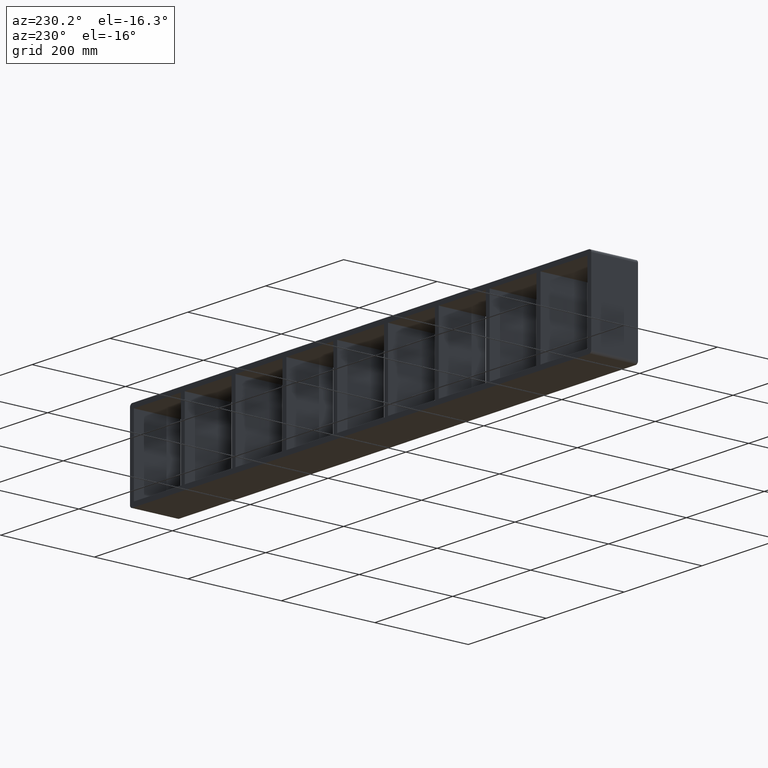
[diagram: clean part render]
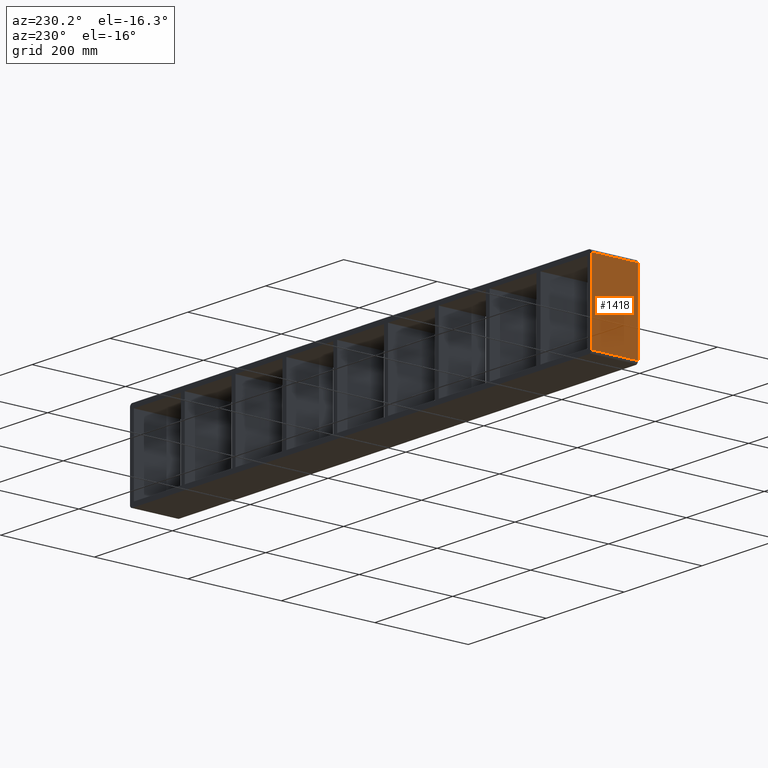
[diagram: same view with one face highlighted and labeled with its STEP entity id]
A machine part, auxiliary view. The second image highlights one B-rep face of the part: STEP entity #1418.
In plain terms, the highlighted planar face has unit normal (-1, 0, 0).
Its self-contained STEP definition (entity closure, byte-faithful):
#1216=CARTESIAN_POINT('',(-592.25,-3.0,83.749999999999986));
#1217=VERTEX_POINT('',#1216);
#1225=CARTESIAN_POINT('',(-592.25,-3.0,-83.750000000000014));
#1226=VERTEX_POINT('',#1225);
#1227=CARTESIAN_POINT('',(-592.25,-3.0,83.749999999999986));
#1228=DIRECTION('',(0.0,0.0,-1.0));
#1229=VECTOR('',#1228,167.5);
#1230=LINE('',#1227,#1229);
#1231=EDGE_CURVE('',#1217,#1226,#1230,.T.);
#1376=CARTESIAN_POINT('',(-592.25,97.0,83.749999999999986));
#1377=VERTEX_POINT('',#1376);
#1385=CARTESIAN_POINT('',(-592.25,-3.0,83.749999999999986));
#1386=DIRECTION('',(0.0,1.0,0.0));
#1387=VECTOR('',#1386,100.0);
#1388=LINE('',#1385,#1387);
#1389=EDGE_CURVE('',#1217,#1377,#1388,.T.);
#1395=CARTESIAN_POINT('',(-592.25,0.0,-83.75));
#1396=DIRECTION('',(-1.0,0.0,0.0));
#1397=DIRECTION('',(0.0,0.0,1.0));
#1398=AXIS2_PLACEMENT_3D('',#1395,#1396,#1397);
#1399=PLANE('',#1398);
#1400=ORIENTED_EDGE('',*,*,#1389,.T.);
#1401=CARTESIAN_POINT('',(-592.25,97.0,-83.750000000000014));
#1402=VERTEX_POINT('',#1401);
#1403=CARTESIAN_POINT('',(-592.25,97.0,-83.75));
#1404=DIRECTION('',(0.0,0.0,1.0));
#1405=VECTOR('',#1404,167.5);
#1406=LINE('',#1403,#1405);
#1407=EDGE_CURVE('',#1402,#1377,#1406,.T.);
#1408=ORIENTED_EDGE('',*,*,#1407,.F.);
#1409=CARTESIAN_POINT('',(-592.25,-3.0,-83.75));
#1410=DIRECTION('',(0.0,1.0,0.0));
#1411=VECTOR('',#1410,100.0);
#1412=LINE('',#1409,#1411);
#1413=EDGE_CURVE('',#1226,#1402,#1412,.T.);
#1414=ORIENTED_EDGE('',*,*,#1413,.F.);
#1415=ORIENTED_EDGE('',*,*,#1231,.F.);
#1416=EDGE_LOOP('',(#1400,#1408,#1414,#1415));
#1417=FACE_OUTER_BOUND('',#1416,.T.);
#1418=ADVANCED_FACE('',(#1417),#1399,.T.);